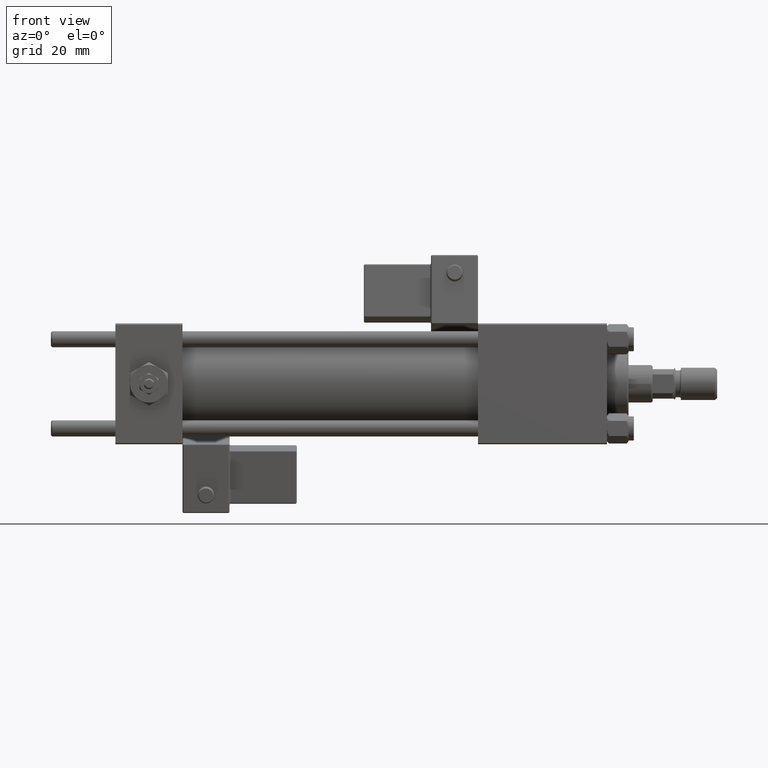
[diagram: clean part render]
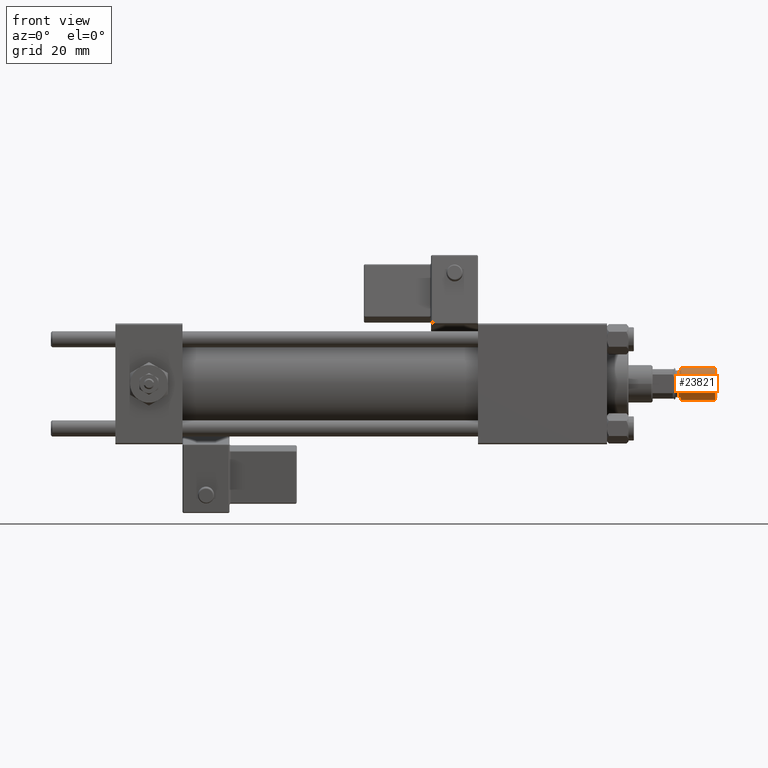
[diagram: same view with one face highlighted and labeled with its STEP entity id]
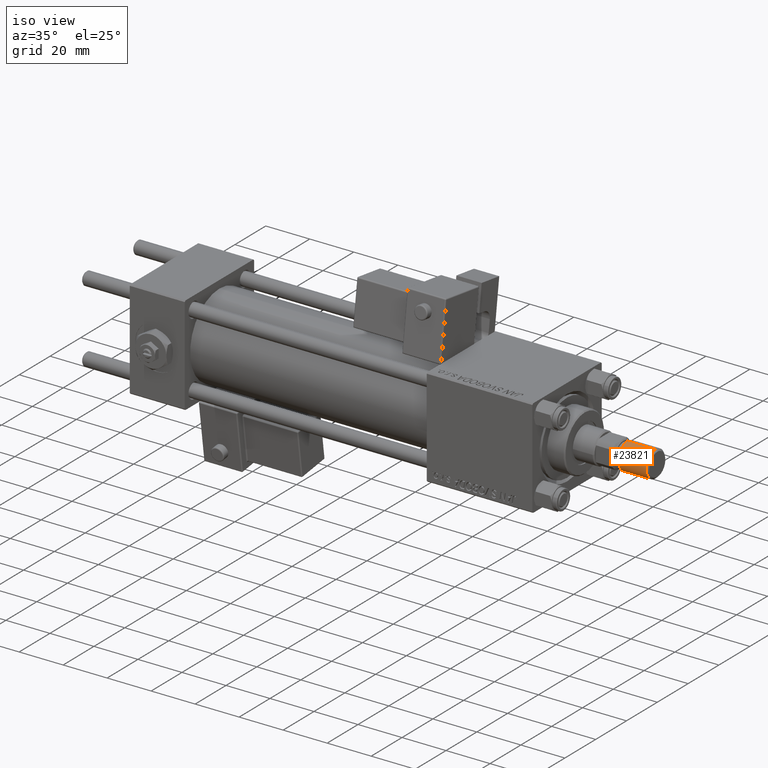
[diagram: same view with one face highlighted and labeled with its STEP entity id]
A machine part, front view. The second image highlights one B-rep face of the part: STEP entity #23821.
A second angle (iso view) of the same face is appended — the face is thin or edge-on in the first view.
In plain terms, the highlighted cylindrical surface (edge-blend (fillet) strip) has radius 6 mm, axis along (1, -0, 0).
Its self-contained STEP definition (entity closure, byte-faithful):
#2808 = FACE_OUTER_BOUND ( 'NONE', #24174, .T. ) ;
#3056 = VECTOR ( 'NONE', #32061, 1000.000000000000000 ) ;
#4565 = ORIENTED_EDGE ( 'NONE', *, *, #36374, .F. ) ;
#7735 = CYLINDRICAL_SURFACE ( 'NONE', #45655, 6.000000000000000888 ) ;
#9948 = CARTESIAN_POINT ( 'NONE',  ( -6.000000000000000888, 0.000000000000000000, 0.8000000000000055955 ) ) ;
#12372 = AXIS2_PLACEMENT_3D ( 'NONE', #18909, #31541, #27429 ) ;
#12705 = LINE ( 'NONE', #25050, #46853 ) ;
#13782 = CARTESIAN_POINT ( 'NONE',  ( -6.000000000000000888, 0.000000000000000000, 13.50000000000000000 ) ) ;
#14794 = LINE ( 'NONE', #44133, #3056 ) ;
#15661 = CARTESIAN_POINT ( 'NONE',  ( 0.000000000000000000, 0.000000000000000000, 0.8000000000000055955 ) ) ;
#15850 = VERTEX_POINT ( 'NONE', #13782 ) ;
#18319 = AXIS2_PLACEMENT_3D ( 'NONE', #15661, #49410, #32398 ) ;
#18909 = CARTESIAN_POINT ( 'NONE',  ( 0.000000000000000000, 0.000000000000000000, 13.50000000000000000 ) ) ;
#20044 = EDGE_CURVE ( 'NONE', #50180, #40564, #23574, .T. ) ;
#23574 = CIRCLE ( 'NONE', #18319, 6.000000000000000888 ) ;
#23821 = ADVANCED_FACE ( 'NONE', ( #2808 ), #7735, .T. ) ;
#24082 = EDGE_CURVE ( 'NONE', #15850, #52409, #43888, .T. ) ;
#24174 = EDGE_LOOP ( 'NONE', ( #4565, #34589, #46354, #24677 ) ) ;
#24677 = ORIENTED_EDGE ( 'NONE', *, *, #20044, .T. ) ;
#25050 = CARTESIAN_POINT ( 'NONE',  ( 6.000000000000000888, 7.347880794884120722E-16, 13.50000000000000000 ) ) ;
#27262 = CARTESIAN_POINT ( 'NONE',  ( 6.000000000000000888, 7.347880794884120722E-16, 13.50000000000000000 ) ) ;
#27429 = DIRECTION ( 'NONE',  ( 1.000000000000000000, 0.000000000000000000, 0.000000000000000000 ) ) ;
#28305 = DIRECTION ( 'NONE',  ( -0.000000000000000000, -0.000000000000000000, -1.000000000000000000 ) ) ;
#31541 = DIRECTION ( 'NONE',  ( 0.000000000000000000, 0.000000000000000000, 1.000000000000000000 ) ) ;
#32061 = DIRECTION ( 'NONE',  ( -0.000000000000000000, -0.000000000000000000, -1.000000000000000000 ) ) ;
#32398 = DIRECTION ( 'NONE',  ( 1.000000000000000000, 0.000000000000000000, 0.000000000000000000 ) ) ;
#34589 = ORIENTED_EDGE ( 'NONE', *, *, #24082, .F. ) ;
#36374 = EDGE_CURVE ( 'NONE', #52409, #40564, #12705, .T. ) ;
#36524 = CARTESIAN_POINT ( 'NONE',  ( 0.000000000000000000, 0.000000000000000000, 13.50000000000000000 ) ) ;
#37069 = DIRECTION ( 'NONE',  ( -1.000000000000000000, 0.000000000000000000, 0.000000000000000000 ) ) ;
#39321 = EDGE_CURVE ( 'NONE', #15850, #50180, #14794, .T. ) ;
#40564 = VERTEX_POINT ( 'NONE', #44896 ) ;
#43888 = CIRCLE ( 'NONE', #12372, 6.000000000000000888 ) ;
#44133 = CARTESIAN_POINT ( 'NONE',  ( -6.000000000000000888, 0.000000000000000000, 13.50000000000000000 ) ) ;
#44896 = CARTESIAN_POINT ( 'NONE',  ( 6.000000000000000888, 7.347880794884120722E-16, 0.8000000000000055955 ) ) ;
#45655 = AXIS2_PLACEMENT_3D ( 'NONE', #36524, #28305, #37069 ) ;
#46354 = ORIENTED_EDGE ( 'NONE', *, *, #39321, .T. ) ;
#46853 = VECTOR ( 'NONE', #49239, 1000.000000000000000 ) ;
#49239 = DIRECTION ( 'NONE',  ( -0.000000000000000000, -0.000000000000000000, -1.000000000000000000 ) ) ;
#49410 = DIRECTION ( 'NONE',  ( -0.000000000000000000, -0.000000000000000000, 1.000000000000000000 ) ) ;
#50180 = VERTEX_POINT ( 'NONE', #9948 ) ;
#52409 = VERTEX_POINT ( 'NONE', #27262 ) ;